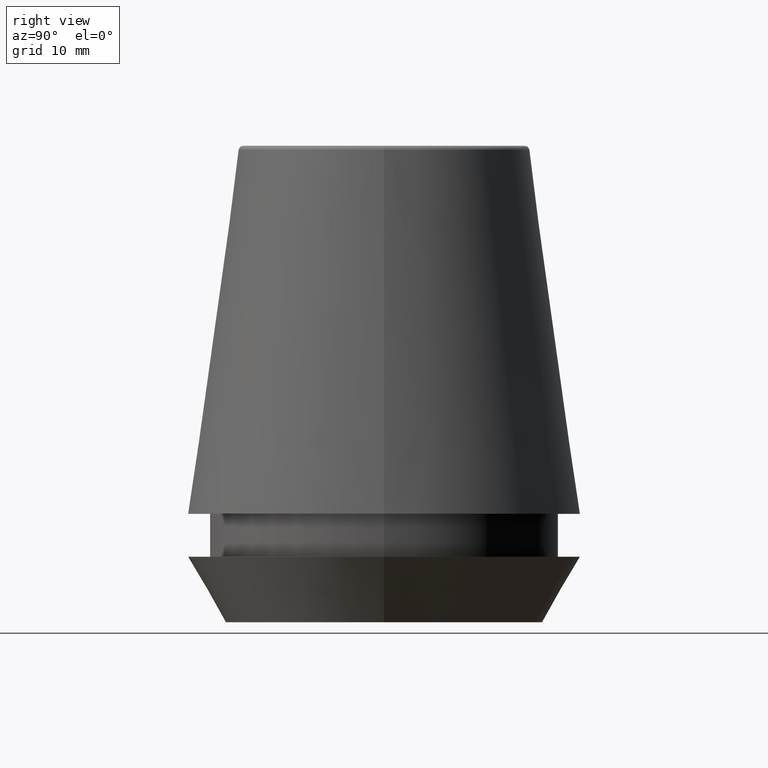
[diagram: clean part render]
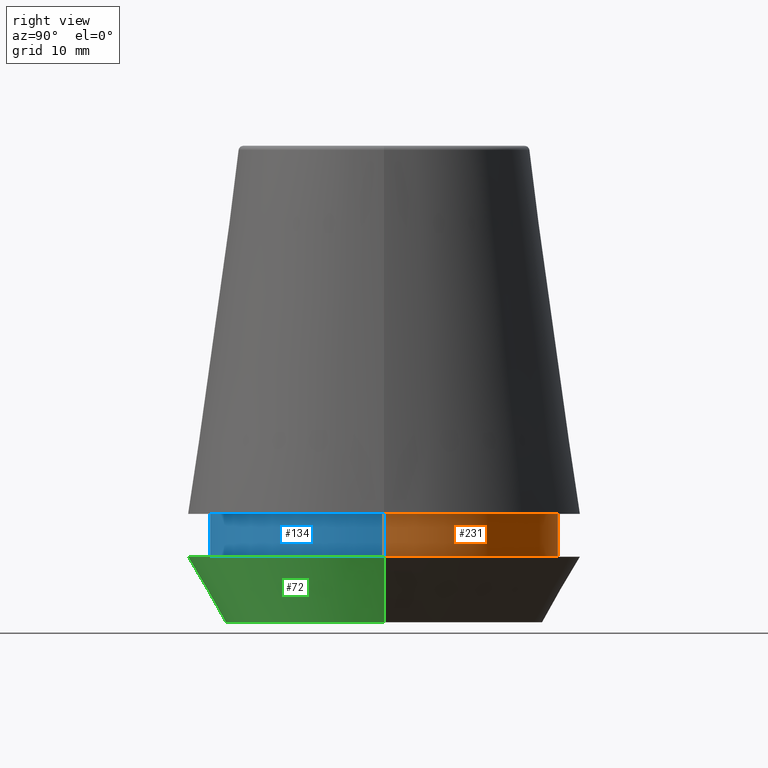
[diagram: same view with three faces highlighted in distinct colors, each labeled with its STEP entity id]
A machine part, right view with three faces highlighted in distinct colors.
Their STEP definitions:

[orange] entity #231 — the highlighted cylindrical surface (partial cylindrical patch) has radius 14.6 mm, axis along (-0, -0, 1).
#26 = EDGE_CURVE ( 'NONE', #52, #100, #112, .T. ) ;
#32 = CARTESIAN_POINT ( 'NONE',  ( -14.60000000000000000, 1.787984326755135800E-015, 5.500000000000005300 ) ) ;
#35 = LINE ( 'NONE', #64, #132 ) ;
#47 = DIRECTION ( 'NONE',  ( 1.000000000000000000, 0.0000000000000000000, 0.0000000000000000000 ) ) ;
#52 = VERTEX_POINT ( 'NONE', #350 ) ;
#64 = CARTESIAN_POINT ( 'NONE',  ( 14.60000000000000000, 0.0000000000000000000, 101.8074564848000400 ) ) ;
#69 = EDGE_CURVE ( 'NONE', #146, #52, #35, .T. ) ;
#86 = EDGE_CURVE ( 'NONE', #202, #100, #240, .T. ) ;
#100 = VERTEX_POINT ( 'NONE', #210 ) ;
#101 = DIRECTION ( 'NONE',  ( -0.0000000000000000000, -0.0000000000000000000, 1.000000000000000000 ) ) ;
#102 = VECTOR ( 'NONE', #246, 1000.000000000000000 ) ;
#108 = AXIS2_PLACEMENT_3D ( 'NONE', #381, #171, #47 ) ;
#112 = CIRCLE ( 'NONE', #365, 14.60000000000000000 ) ;
#120 = CARTESIAN_POINT ( 'NONE',  ( -14.60000000000000000, 1.787984326755135800E-015, 101.8074564848000400 ) ) ;
#130 = CARTESIAN_POINT ( 'NONE',  ( 0.0000000000000000000, 0.0000000000000000000, 9.099999999999997900 ) ) ;
#132 = VECTOR ( 'NONE', #343, 1000.000000000000000 ) ;
#146 = VERTEX_POINT ( 'NONE', #306 ) ;
#161 = CIRCLE ( 'NONE', #197, 14.60000000000000000 ) ;
#171 = DIRECTION ( 'NONE',  ( -0.0000000000000000000, -0.0000000000000000000, 1.000000000000000000 ) ) ;
#177 = CARTESIAN_POINT ( 'NONE',  ( 0.0000000000000000000, 0.0000000000000000000, 5.500000000000005300 ) ) ;
#179 = FACE_OUTER_BOUND ( 'NONE', #329, .T. ) ;
#197 = AXIS2_PLACEMENT_3D ( 'NONE', #177, #101, #229 ) ;
#202 = VERTEX_POINT ( 'NONE', #32 ) ;
#210 = CARTESIAN_POINT ( 'NONE',  ( -14.60000000000000000, 1.787984326755135800E-015, 9.099999999999997900 ) ) ;
#227 = EDGE_CURVE ( 'NONE', #146, #202, #161, .T. ) ;
#229 = DIRECTION ( 'NONE',  ( 1.000000000000000000, 0.0000000000000000000, 0.0000000000000000000 ) ) ;
#230 = ORIENTED_EDGE ( 'NONE', *, *, #227, .T. ) ;
#231 = ADVANCED_FACE ( 'NONE', ( #179 ), #320, .T. ) ;
#240 = LINE ( 'NONE', #120, #102 ) ;
#243 = ORIENTED_EDGE ( 'NONE', *, *, #26, .F. ) ;
#246 = DIRECTION ( 'NONE',  ( -0.0000000000000000000, -0.0000000000000000000, 1.000000000000000000 ) ) ;
#255 = DIRECTION ( 'NONE',  ( 1.000000000000000000, 0.0000000000000000000, 0.0000000000000000000 ) ) ;
#265 = ORIENTED_EDGE ( 'NONE', *, *, #86, .T. ) ;
#306 = CARTESIAN_POINT ( 'NONE',  ( 14.60000000000000000, 0.0000000000000000000, 5.500000000000005300 ) ) ;
#320 = CYLINDRICAL_SURFACE ( 'NONE', #108, 14.60000000000000000 ) ;
#329 = EDGE_LOOP ( 'NONE', ( #230, #265, #243, #354 ) ) ;
#343 = DIRECTION ( 'NONE',  ( -0.0000000000000000000, -0.0000000000000000000, 1.000000000000000000 ) ) ;
#350 = CARTESIAN_POINT ( 'NONE',  ( 14.60000000000000000, 0.0000000000000000000, 9.099999999999997900 ) ) ;
#354 = ORIENTED_EDGE ( 'NONE', *, *, #69, .F. ) ;
#365 = AXIS2_PLACEMENT_3D ( 'NONE', #130, #378, #255 ) ;
#378 = DIRECTION ( 'NONE',  ( -0.0000000000000000000, -0.0000000000000000000, 1.000000000000000000 ) ) ;
#381 = CARTESIAN_POINT ( 'NONE',  ( 0.0000000000000000000, 0.0000000000000000000, 101.8074564848000400 ) ) ;

[blue] entity #134 — the highlighted cylindrical surface (partial cylindrical patch) has radius 14.6 mm, axis along (-0, -0, 1).
#11 = DIRECTION ( 'NONE',  ( 1.000000000000000000, 0.0000000000000000000, 0.0000000000000000000 ) ) ;
#13 = DIRECTION ( 'NONE',  ( 1.000000000000000000, 0.0000000000000000000, 0.0000000000000000000 ) ) ;
#24 = EDGE_LOOP ( 'NONE', ( #316, #348, #290, #33 ) ) ;
#28 = EDGE_CURVE ( 'NONE', #202, #146, #259, .T. ) ;
#32 = CARTESIAN_POINT ( 'NONE',  ( -14.60000000000000000, 1.787984326755135800E-015, 5.500000000000005300 ) ) ;
#33 = ORIENTED_EDGE ( 'NONE', *, *, #43, .F. ) ;
#35 = LINE ( 'NONE', #64, #132 ) ;
#43 = EDGE_CURVE ( 'NONE', #100, #52, #203, .T. ) ;
#52 = VERTEX_POINT ( 'NONE', #350 ) ;
#64 = CARTESIAN_POINT ( 'NONE',  ( 14.60000000000000000, 0.0000000000000000000, 101.8074564848000400 ) ) ;
#69 = EDGE_CURVE ( 'NONE', #146, #52, #35, .T. ) ;
#75 = CYLINDRICAL_SURFACE ( 'NONE', #190, 14.60000000000000000 ) ;
#86 = EDGE_CURVE ( 'NONE', #202, #100, #240, .T. ) ;
#99 = DIRECTION ( 'NONE',  ( -0.0000000000000000000, -0.0000000000000000000, 1.000000000000000000 ) ) ;
#100 = VERTEX_POINT ( 'NONE', #210 ) ;
#102 = VECTOR ( 'NONE', #246, 1000.000000000000000 ) ;
#116 = DIRECTION ( 'NONE',  ( 1.000000000000000000, 0.0000000000000000000, 0.0000000000000000000 ) ) ;
#120 = CARTESIAN_POINT ( 'NONE',  ( -14.60000000000000000, 1.787984326755135800E-015, 101.8074564848000400 ) ) ;
#127 = DIRECTION ( 'NONE',  ( -0.0000000000000000000, -0.0000000000000000000, 1.000000000000000000 ) ) ;
#132 = VECTOR ( 'NONE', #343, 1000.000000000000000 ) ;
#134 = ADVANCED_FACE ( 'NONE', ( #249 ), #75, .T. ) ;
#146 = VERTEX_POINT ( 'NONE', #306 ) ;
#190 = AXIS2_PLACEMENT_3D ( 'NONE', #274, #99, #116 ) ;
#200 = DIRECTION ( 'NONE',  ( -0.0000000000000000000, -0.0000000000000000000, 1.000000000000000000 ) ) ;
#202 = VERTEX_POINT ( 'NONE', #32 ) ;
#203 = CIRCLE ( 'NONE', #254, 14.60000000000000000 ) ;
#210 = CARTESIAN_POINT ( 'NONE',  ( -14.60000000000000000, 1.787984326755135800E-015, 9.099999999999997900 ) ) ;
#240 = LINE ( 'NONE', #120, #102 ) ;
#246 = DIRECTION ( 'NONE',  ( -0.0000000000000000000, -0.0000000000000000000, 1.000000000000000000 ) ) ;
#249 = FACE_OUTER_BOUND ( 'NONE', #24, .T. ) ;
#254 = AXIS2_PLACEMENT_3D ( 'NONE', #352, #200, #11 ) ;
#259 = CIRCLE ( 'NONE', #314, 14.60000000000000000 ) ;
#274 = CARTESIAN_POINT ( 'NONE',  ( 0.0000000000000000000, 0.0000000000000000000, 101.8074564848000400 ) ) ;
#290 = ORIENTED_EDGE ( 'NONE', *, *, #69, .T. ) ;
#306 = CARTESIAN_POINT ( 'NONE',  ( 14.60000000000000000, 0.0000000000000000000, 5.500000000000005300 ) ) ;
#313 = CARTESIAN_POINT ( 'NONE',  ( 0.0000000000000000000, 0.0000000000000000000, 5.500000000000005300 ) ) ;
#314 = AXIS2_PLACEMENT_3D ( 'NONE', #313, #127, #13 ) ;
#316 = ORIENTED_EDGE ( 'NONE', *, *, #86, .F. ) ;
#343 = DIRECTION ( 'NONE',  ( -0.0000000000000000000, -0.0000000000000000000, 1.000000000000000000 ) ) ;
#348 = ORIENTED_EDGE ( 'NONE', *, *, #28, .T. ) ;
#350 = CARTESIAN_POINT ( 'NONE',  ( 14.60000000000000000, 0.0000000000000000000, 9.099999999999997900 ) ) ;
#352 = CARTESIAN_POINT ( 'NONE',  ( 0.0000000000000000000, 0.0000000000000000000, 9.099999999999997900 ) ) ;

[green] entity #72 — the highlighted conical surface has half-angle 30 deg.
#3 = CARTESIAN_POINT ( 'NONE',  ( 16.50000000000000000, 0.0000000000000000000, 5.500000000000005300 ) ) ;
#19 = VECTOR ( 'NONE', #62, 999.9999999999998900 ) ;
#23 = EDGE_LOOP ( 'NONE', ( #349, #214, #54, #377 ) ) ;
#30 = DIRECTION ( 'NONE',  ( -0.0000000000000000000, -0.0000000000000000000, 1.000000000000000000 ) ) ;
#44 = EDGE_CURVE ( 'NONE', #342, #252, #174, .T. ) ;
#49 = CONICAL_SURFACE ( 'NONE', #245, 13.32457351945710200, 0.5235987755982927100 ) ;
#54 = ORIENTED_EDGE ( 'NONE', *, *, #44, .T. ) ;
#60 = DIRECTION ( 'NONE',  ( 1.000000000000000000, 0.0000000000000000000, 0.0000000000000000000 ) ) ;
#62 = DIRECTION ( 'NONE',  ( -0.4999999999999947300, 6.123233995736700700E-017, 0.8660254037844418200 ) ) ;
#68 = CARTESIAN_POINT ( 'NONE',  ( 13.32457351945710200, 0.0000000000000000000, 0.0000000000000000000 ) ) ;
#71 = LINE ( 'NONE', #153, #19 ) ;
#72 = ADVANCED_FACE ( 'NONE', ( #97 ), #49, .T. ) ;
#80 = EDGE_CURVE ( 'NONE', #95, #252, #267, .T. ) ;
#83 = DIRECTION ( 'NONE',  ( 1.000000000000000000, 0.0000000000000000000, 0.0000000000000000000 ) ) ;
#87 = VECTOR ( 'NONE', #353, 999.9999999999998900 ) ;
#95 = VERTEX_POINT ( 'NONE', #222 ) ;
#97 = FACE_OUTER_BOUND ( 'NONE', #23, .T. ) ;
#124 = CIRCLE ( 'NONE', #262, 13.32457351945710200 ) ;
#151 = CARTESIAN_POINT ( 'NONE',  ( 13.32457351945710200, 0.0000000000000000000, 0.0000000000000000000 ) ) ;
#153 = CARTESIAN_POINT ( 'NONE',  ( -13.32457351945710200, 1.631789631060672300E-015, 0.0000000000000000000 ) ) ;
#168 = CARTESIAN_POINT ( 'NONE',  ( 0.0000000000000000000, 0.0000000000000000000, 0.0000000000000000000 ) ) ;
#174 = LINE ( 'NONE', #68, #87 ) ;
#189 = CARTESIAN_POINT ( 'NONE',  ( 0.0000000000000000000, 0.0000000000000000000, 0.0000000000000000000 ) ) ;
#194 = DIRECTION ( 'NONE',  ( -0.0000000000000000000, -0.0000000000000000000, 1.000000000000000000 ) ) ;
#214 = ORIENTED_EDGE ( 'NONE', *, *, #387, .T. ) ;
#221 = VERTEX_POINT ( 'NONE', #226 ) ;
#222 = CARTESIAN_POINT ( 'NONE',  ( -16.50000000000000000, 2.020667218593133100E-015, 5.500000000000005300 ) ) ;
#226 = CARTESIAN_POINT ( 'NONE',  ( -13.32457351945710200, 1.826228424826902600E-015, 0.0000000000000000000 ) ) ;
#245 = AXIS2_PLACEMENT_3D ( 'NONE', #168, #372, #272 ) ;
#252 = VERTEX_POINT ( 'NONE', #3 ) ;
#262 = AXIS2_PLACEMENT_3D ( 'NONE', #189, #30, #83 ) ;
#267 = CIRCLE ( 'NONE', #375, 16.50000000000000000 ) ;
#272 = DIRECTION ( 'NONE',  ( 1.000000000000000000, 0.0000000000000000000, 0.0000000000000000000 ) ) ;
#319 = EDGE_CURVE ( 'NONE', #221, #95, #71, .T. ) ;
#342 = VERTEX_POINT ( 'NONE', #151 ) ;
#344 = CARTESIAN_POINT ( 'NONE',  ( 0.0000000000000000000, 0.0000000000000000000, 5.500000000000005300 ) ) ;
#349 = ORIENTED_EDGE ( 'NONE', *, *, #319, .F. ) ;
#353 = DIRECTION ( 'NONE',  ( 0.4999999999999947300, 0.0000000000000000000, 0.8660254037844418200 ) ) ;
#372 = DIRECTION ( 'NONE',  ( -0.0000000000000000000, -0.0000000000000000000, 1.000000000000000000 ) ) ;
#375 = AXIS2_PLACEMENT_3D ( 'NONE', #344, #194, #60 ) ;
#377 = ORIENTED_EDGE ( 'NONE', *, *, #80, .F. ) ;
#387 = EDGE_CURVE ( 'NONE', #221, #342, #124, .T. ) ;